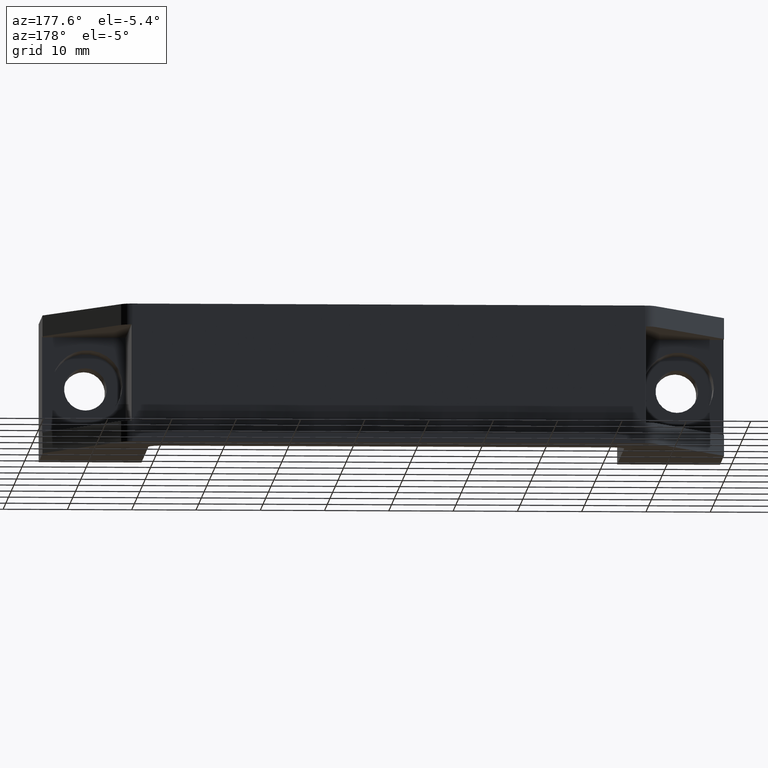
[diagram: clean part render]
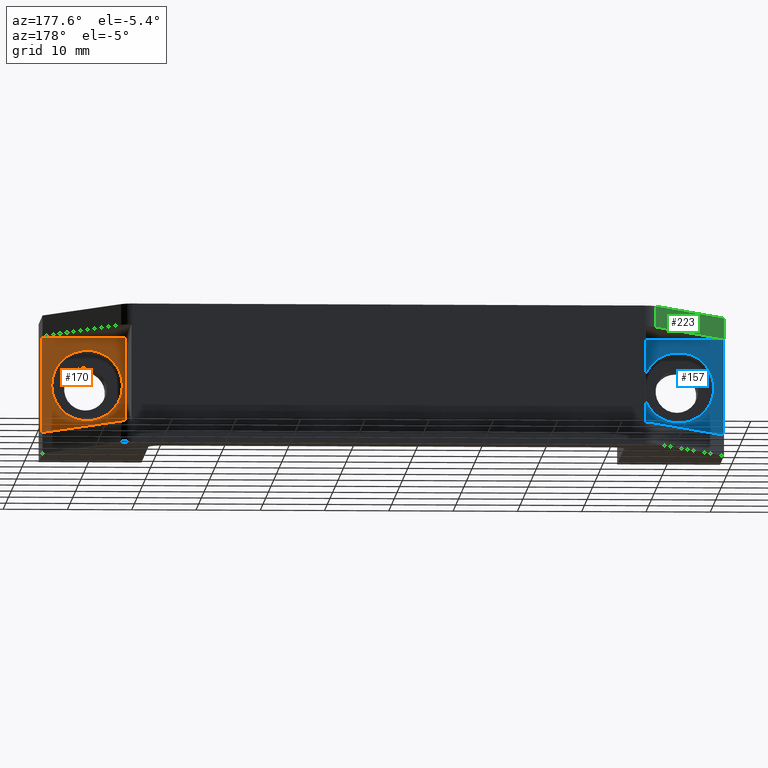
[diagram: same view with three faces highlighted in distinct colors, each labeled with its STEP entity id]
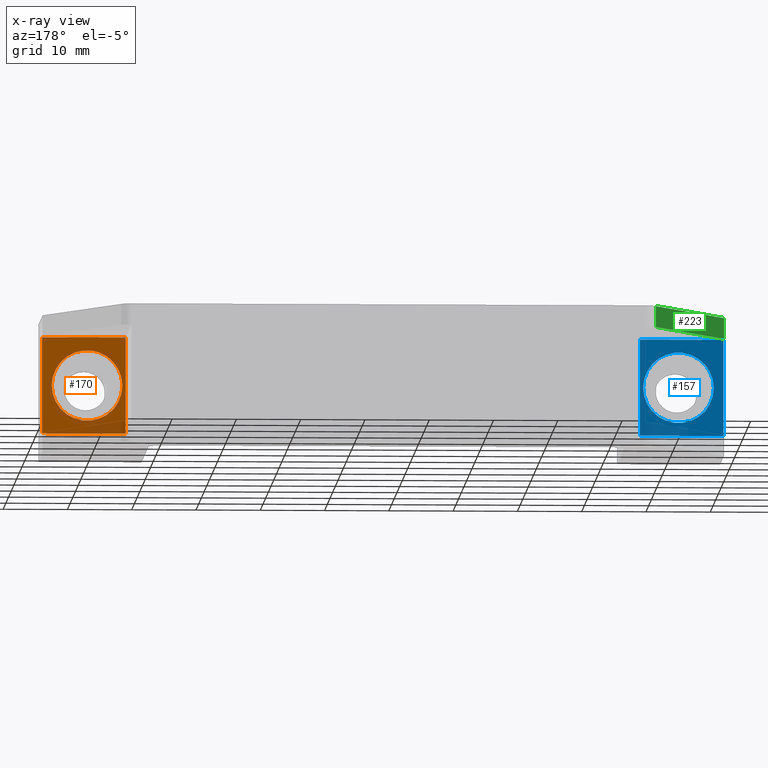
[diagram: x-ray of the same camera — body ghosted, the three highlighted faces saturated]
A machine part, auxiliary view with three faces highlighted in distinct colors.
The next image is the same camera in x-ray (body ghosted, the three faces saturated) — at least one of them is partly hidden behind the body in this view.
Their STEP definitions:

[orange] entity #170 — the highlighted planar face has unit normal (0, -1, 0).
#45 = VERTEX_POINT ( 'NONE', #55 ) ;
#55 = CARTESIAN_POINT ( 'NONE',  ( 105.5000000000000100, 13.00000000000000200, -10.75000000000000000 ) ) ;
#128 = AXIS2_PLACEMENT_3D ( 'NONE', #275, #270, #265 ) ;
#132 = AXIS2_PLACEMENT_3D ( 'NONE', #374, #373, #386 ) ;
#170 = ADVANCED_FACE ( 'NONE', ( #556, #555 ), #406, .F. ) ;
#181 = AXIS2_PLACEMENT_3D ( 'NONE', #445, #488, #522 ) ;
#265 = DIRECTION ( 'NONE',  ( -1.000000000000000000, 0.0000000000000000000, 0.0000000000000000000 ) ) ;
#270 = DIRECTION ( 'NONE',  ( 7.885106708985500100E-017, 1.000000000000000000, 0.0000000000000000000 ) ) ;
#275 = CARTESIAN_POINT ( 'NONE',  ( 100.0000000000000000, 13.00000000000000200, -10.75000000000000000 ) ) ;
#313 = EDGE_CURVE ( 'NONE', #1217, #1191, #985, .T. ) ;
#370 = DIRECTION ( 'NONE',  ( 1.000000000000000000, 0.0000000000000000000, 0.0000000000000000000 ) ) ;
#371 = CARTESIAN_POINT ( 'NONE',  ( 100.5000000000000000, 13.00000000000000200, -3.250000000000000400 ) ) ;
#373 = DIRECTION ( 'NONE',  ( 7.885106708985500100E-017, 1.000000000000000000, 0.0000000000000000000 ) ) ;
#374 = CARTESIAN_POINT ( 'NONE',  ( 100.0000000000000000, 13.00000000000000200, -10.75000000000000000 ) ) ;
#384 = DIRECTION ( 'NONE',  ( -0.0000000000000000000, -0.0000000000000000000, -1.000000000000000000 ) ) ;
#385 = CARTESIAN_POINT ( 'NONE',  ( 107.0000000000000000, 13.00000000080467400, -10.75000000000000200 ) ) ;
#386 = DIRECTION ( 'NONE',  ( -1.000000000000000000, 0.0000000000000000000, 0.0000000000000000000 ) ) ;
#406 = PLANE ( 'NONE',  #181 ) ;
#445 = CARTESIAN_POINT ( 'NONE',  ( 94.00000000000000000, 13.00000000000000200, -3.250000000000000400 ) ) ;
#488 = DIRECTION ( 'NONE',  ( 0.0000000000000000000, -1.000000000000000000, 0.0000000000000000000 ) ) ;
#522 = DIRECTION ( 'NONE',  ( 0.0000000000000000000, 0.0000000000000000000, -1.000000000000000000 ) ) ;
#555 = FACE_OUTER_BOUND ( 'NONE', #616, .T. ) ;
#556 = FACE_BOUND ( 'NONE', #614, .T. ) ;
#614 = EDGE_LOOP ( 'NONE', ( #686, #685 ) ) ;
#616 = EDGE_LOOP ( 'NONE', ( #684, #681, #682, #680 ) ) ;
#680 = ORIENTED_EDGE ( 'NONE', *, *, #313, .T. ) ;
#681 = ORIENTED_EDGE ( 'NONE', *, *, #1139, .T. ) ;
#682 = ORIENTED_EDGE ( 'NONE', *, *, #1137, .F. ) ;
#684 = ORIENTED_EDGE ( 'NONE', *, *, #1157, .T. ) ;
#685 = ORIENTED_EDGE ( 'NONE', *, *, #1149, .F. ) ;
#686 = ORIENTED_EDGE ( 'NONE', *, *, #1156, .F. ) ;
#775 = LINE ( 'NONE', #1123, #904 ) ;
#779 = LINE ( 'NONE', #385, #781 ) ;
#781 = VECTOR ( 'NONE', #384, 1000.000000000000000 ) ;
#857 = CIRCLE ( 'NONE', #132, 5.500000000000005300 ) ;
#898 = CIRCLE ( 'NONE', #128, 5.500000000000005300 ) ;
#902 = VECTOR ( 'NONE', #1135, 1000.000000000000000 ) ;
#903 = LINE ( 'NONE', #1136, #902 ) ;
#904 = VECTOR ( 'NONE', #1118, 1000.000000000000000 ) ;
#985 = LINE ( 'NONE', #371, #986 ) ;
#986 = VECTOR ( 'NONE', #370, 1000.000000000000000 ) ;
#1018 = CARTESIAN_POINT ( 'NONE',  ( 94.50000000000000000, 13.00000000000000200, -10.75000000000000000 ) ) ;
#1030 = CARTESIAN_POINT ( 'NONE',  ( 107.0000000000000000, 13.00000000033528000, -18.24999999729167000 ) ) ;
#1038 = CARTESIAN_POINT ( 'NONE',  ( 107.0000000000000300, 13.00000000053644900, -3.250000004333332800 ) ) ;
#1045 = CARTESIAN_POINT ( 'NONE',  ( 94.00000000000001400, 13.00000000000000400, -18.25000000000000000 ) ) ;
#1064 = CARTESIAN_POINT ( 'NONE',  ( 94.00000000000001400, 13.00000000000000400, -3.250000000000000900 ) ) ;
#1118 = DIRECTION ( 'NONE',  ( 0.0000000000000000000, 0.0000000000000000000, -1.000000000000000000 ) ) ;
#1123 = CARTESIAN_POINT ( 'NONE',  ( 94.00000000000000000, 13.00000000000000200, -10.75000000000000000 ) ) ;
#1135 = DIRECTION ( 'NONE',  ( -1.000000000000000000, 0.0000000000000000000, 0.0000000000000000000 ) ) ;
#1136 = CARTESIAN_POINT ( 'NONE',  ( 100.5000000000000000, 13.00000000000000200, -18.25000000000000000 ) ) ;
#1137 = EDGE_CURVE ( 'NONE', #1217, #1198, #775, .T. ) ;
#1139 = EDGE_CURVE ( 'NONE', #1183, #1198, #903, .T. ) ;
#1149 = EDGE_CURVE ( 'NONE', #45, #1171, #898, .T. ) ;
#1156 = EDGE_CURVE ( 'NONE', #1171, #45, #857, .T. ) ;
#1157 = EDGE_CURVE ( 'NONE', #1191, #1183, #779, .T. ) ;
#1171 = VERTEX_POINT ( 'NONE', #1018 ) ;
#1183 = VERTEX_POINT ( 'NONE', #1030 ) ;
#1191 = VERTEX_POINT ( 'NONE', #1038 ) ;
#1198 = VERTEX_POINT ( 'NONE', #1045 ) ;
#1217 = VERTEX_POINT ( 'NONE', #1064 ) ;

[blue] entity #157 — the highlighted planar face has unit normal (0, 1, 0).
#24 = DIRECTION ( 'NONE',  ( 0.0000000000000000000, 0.0000000000000000000, 1.000000000000000000 ) ) ;
#28 = PLANE ( 'NONE',  #251 ) ;
#30 = CARTESIAN_POINT ( 'NONE',  ( 1.000000000000000000, 13.00000000000000200, -18.25000000000000000 ) ) ;
#31 = DIRECTION ( 'NONE',  ( 0.0000000000000000000, 1.000000000000000000, 0.0000000000000000000 ) ) ;
#40 = VERTEX_POINT ( 'NONE', #50 ) ;
#42 = VERTEX_POINT ( 'NONE', #52 ) ;
#50 = CARTESIAN_POINT ( 'NONE',  ( 1.000000000000000000, 13.00000000033528400, -3.250000000541666700 ) ) ;
#52 = CARTESIAN_POINT ( 'NONE',  ( 14.00000000000000200, 13.00000000000000400, -18.25000000000000000 ) ) ;
#87 = DIRECTION ( 'NONE',  ( -0.0000000000000000000, -0.0000000000000000000, 1.000000000000000000 ) ) ;
#90 = CARTESIAN_POINT ( 'NONE',  ( 1.000000000000000000, 13.00000000080467400, -10.75000000000000200 ) ) ;
#103 = DIRECTION ( 'NONE',  ( -1.000000000000000000, 0.0000000000000000000, 0.0000000000000000000 ) ) ;
#106 = DIRECTION ( 'NONE',  ( 7.885106708985484100E-017, 1.000000000000000000, -2.486996312483516700E-032 ) ) ;
#108 = CARTESIAN_POINT ( 'NONE',  ( 8.000000000000000000, 13.00000000000000200, -10.75000000000000000 ) ) ;
#131 = AXIS2_PLACEMENT_3D ( 'NONE', #263, #383, #382 ) ;
#157 = ADVANCED_FACE ( 'NONE', ( #584, #583 ), #28, .T. ) ;
#211 = AXIS2_PLACEMENT_3D ( 'NONE', #108, #106, #103 ) ;
#233 = EDGE_CURVE ( 'NONE', #40, #1201, #905, .T. ) ;
#237 = EDGE_CURVE ( 'NONE', #1201, #42, #913, .T. ) ;
#251 = AXIS2_PLACEMENT_3D ( 'NONE', #30, #31, #24 ) ;
#263 = CARTESIAN_POINT ( 'NONE',  ( 8.000000000000000000, 13.00000000000000200, -10.75000000000000000 ) ) ;
#298 = EDGE_CURVE ( 'NONE', #1199, #1170, #951, .T. ) ;
#299 = EDGE_CURVE ( 'NONE', #1204, #40, #950, .T. ) ;
#308 = EDGE_CURVE ( 'NONE', #42, #1204, #971, .T. ) ;
#347 = DIRECTION ( 'NONE',  ( -1.000000000000000000, -0.0000000000000000000, -0.0000000000000000000 ) ) ;
#352 = CARTESIAN_POINT ( 'NONE',  ( 7.500000000000000000, 13.00000000000000200, -18.25000000000000000 ) ) ;
#382 = DIRECTION ( 'NONE',  ( -1.000000000000000000, 0.0000000000000000000, 0.0000000000000000000 ) ) ;
#383 = DIRECTION ( 'NONE',  ( 7.885106708985484100E-017, 1.000000000000000000, -2.486996312483516700E-032 ) ) ;
#403 = DIRECTION ( 'NONE',  ( -0.0000000000000000000, -0.0000000000000000000, -1.000000000000000000 ) ) ;
#404 = CARTESIAN_POINT ( 'NONE',  ( 14.00000000000000000, 13.00000000000000200, -10.75000000000000000 ) ) ;
#412 = DIRECTION ( 'NONE',  ( 1.000000000000000000, 0.0000000000000000000, 0.0000000000000000000 ) ) ;
#414 = CARTESIAN_POINT ( 'NONE',  ( 7.500000000000000000, 13.00000000000000200, -3.250000000000000400 ) ) ;
#583 = FACE_OUTER_BOUND ( 'NONE', #605, .T. ) ;
#584 = FACE_BOUND ( 'NONE', #603, .T. ) ;
#603 = EDGE_LOOP ( 'NONE', ( #738, #737 ) ) ;
#605 = EDGE_LOOP ( 'NONE', ( #736, #735, #734, #733 ) ) ;
#733 = ORIENTED_EDGE ( 'NONE', *, *, #233, .T. ) ;
#734 = ORIENTED_EDGE ( 'NONE', *, *, #299, .T. ) ;
#735 = ORIENTED_EDGE ( 'NONE', *, *, #308, .T. ) ;
#736 = ORIENTED_EDGE ( 'NONE', *, *, #237, .T. ) ;
#737 = ORIENTED_EDGE ( 'NONE', *, *, #1155, .F. ) ;
#738 = ORIENTED_EDGE ( 'NONE', *, *, #298, .F. ) ;
#893 = CIRCLE ( 'NONE', #131, 5.500000000000000900 ) ;
#905 = LINE ( 'NONE', #414, #906 ) ;
#906 = VECTOR ( 'NONE', #412, 1000.000000000000000 ) ;
#913 = LINE ( 'NONE', #404, #914 ) ;
#914 = VECTOR ( 'NONE', #403, 1000.000000000000000 ) ;
#950 = LINE ( 'NONE', #90, #952 ) ;
#951 = CIRCLE ( 'NONE', #211, 5.500000000000000900 ) ;
#952 = VECTOR ( 'NONE', #87, 1000.000000000000000 ) ;
#971 = LINE ( 'NONE', #352, #972 ) ;
#972 = VECTOR ( 'NONE', #347, 1000.000000000000000 ) ;
#1017 = CARTESIAN_POINT ( 'NONE',  ( 13.50000000000000200, 13.00000000000000200, -10.75000000000000000 ) ) ;
#1046 = CARTESIAN_POINT ( 'NONE',  ( 2.499999999999999600, 13.00000000000000200, -10.75000000000000000 ) ) ;
#1048 = CARTESIAN_POINT ( 'NONE',  ( 14.00000000000000000, 13.00000000000000400, -3.250000000000000400 ) ) ;
#1051 = CARTESIAN_POINT ( 'NONE',  ( 0.9999999999999995600, 13.00000000010058800, -18.25000000000000000 ) ) ;
#1155 = EDGE_CURVE ( 'NONE', #1170, #1199, #893, .T. ) ;
#1170 = VERTEX_POINT ( 'NONE', #1017 ) ;
#1199 = VERTEX_POINT ( 'NONE', #1046 ) ;
#1201 = VERTEX_POINT ( 'NONE', #1048 ) ;
#1204 = VERTEX_POINT ( 'NONE', #1051 ) ;

[green] entity #223 — the highlighted planar face has unit normal (0.8609, -0.5087, 0).
#41 = VERTEX_POINT ( 'NONE', #51 ) ;
#51 = CARTESIAN_POINT ( 'NONE',  ( 0.9999999999999991100, 14.69230769568101500, -3.250000002166666800 ) ) ;
#76 = DIRECTION ( 'NONE',  ( 0.0000000000000000000, 0.0000000000000000000, -1.000000000000000000 ) ) ;
#78 = CARTESIAN_POINT ( 'NONE',  ( 1.000000000000000000, 14.69230769200000000, -10.75000000000000000 ) ) ;
#79 = CARTESIAN_POINT ( 'NONE',  ( 12.41940736893840500, 34.01745862487442200, -10.75000000000000000 ) ) ;
#80 = DIRECTION ( 'NONE',  ( -0.0000000000000000000, -0.0000000000000000000, 1.000000000000000000 ) ) ;
#82 = CARTESIAN_POINT ( 'NONE',  ( 1.000000000000000000, 14.69230769200000000, 0.0000000000000000000 ) ) ;
#83 = DIRECTION ( 'NONE',  ( 0.5087293121296429000, 0.8609265282125415600, 0.0000000000000000000 ) ) ;
#197 = AXIS2_PLACEMENT_3D ( 'NONE', #441, #439, #438 ) ;
#223 = ADVANCED_FACE ( 'NONE', ( #530 ), #442, .F. ) ;
#235 = EDGE_CURVE ( 'NONE', #41, #1190, #909, .T. ) ;
#285 = EDGE_CURVE ( 'NONE', #1174, #1190, #927, .T. ) ;
#286 = EDGE_CURVE ( 'NONE', #41, #1192, #930, .T. ) ;
#287 = EDGE_CURVE ( 'NONE', #1192, #1174, #932, .T. ) ;
#408 = DIRECTION ( 'NONE',  ( 0.5087293121296429000, 0.8609265282125416800, 0.0000000000000000000 ) ) ;
#409 = CARTESIAN_POINT ( 'NONE',  ( 6.709703684500000900, 24.35488315800000000, -3.250000000000000400 ) ) ;
#438 = DIRECTION ( 'NONE',  ( 0.5087293121296429000, 0.8609265282125415600, 0.0000000000000000000 ) ) ;
#439 = DIRECTION ( 'NONE',  ( 0.8609265282125416800, -0.5087293121296430100, 0.0000000000000000000 ) ) ;
#441 = CARTESIAN_POINT ( 'NONE',  ( 1.000000000000000000, 14.69230769200000000, -3.250000000000000400 ) ) ;
#442 = PLANE ( 'NONE',  #197 ) ;
#523 = ORIENTED_EDGE ( 'NONE', *, *, #235, .F. ) ;
#530 = FACE_OUTER_BOUND ( 'NONE', #640, .T. ) ;
#538 = ORIENTED_EDGE ( 'NONE', *, *, #285, .T. ) ;
#640 = EDGE_LOOP ( 'NONE', ( #538, #523, #833, #832 ) ) ;
#832 = ORIENTED_EDGE ( 'NONE', *, *, #287, .T. ) ;
#833 = ORIENTED_EDGE ( 'NONE', *, *, #286, .T. ) ;
#909 = LINE ( 'NONE', #409, #910 ) ;
#910 = VECTOR ( 'NONE', #408, 1000.000000000000200 ) ;
#927 = LINE ( 'NONE', #79, #929 ) ;
#929 = VECTOR ( 'NONE', #76, 1000.000000000000000 ) ;
#930 = LINE ( 'NONE', #78, #931 ) ;
#931 = VECTOR ( 'NONE', #80, 1000.000000000000000 ) ;
#932 = LINE ( 'NONE', #82, #933 ) ;
#933 = VECTOR ( 'NONE', #83, 1000.000000000000100 ) ;
#1021 = CARTESIAN_POINT ( 'NONE',  ( 12.41940736897097800, 34.01745862444020900, 0.0000000000000000000 ) ) ;
#1037 = CARTESIAN_POINT ( 'NONE',  ( 12.41940736907813700, 34.01745862437689300, -3.250000003250000700 ) ) ;
#1039 = CARTESIAN_POINT ( 'NONE',  ( 1.000000000000000000, 14.69230769200000000, 0.0000000000000000000 ) ) ;
#1174 = VERTEX_POINT ( 'NONE', #1021 ) ;
#1190 = VERTEX_POINT ( 'NONE', #1037 ) ;
#1192 = VERTEX_POINT ( 'NONE', #1039 ) ;